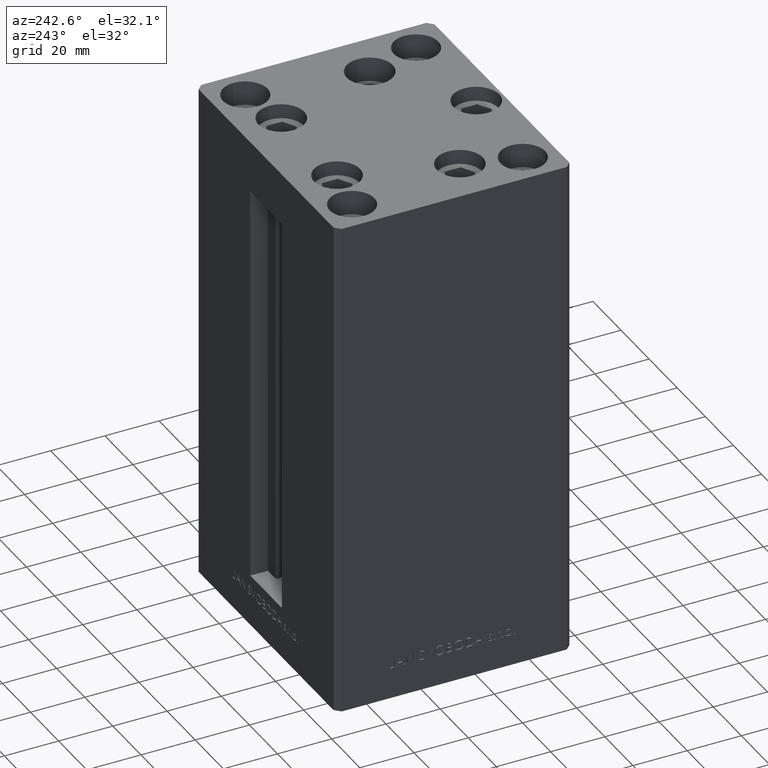
[diagram: clean part render]
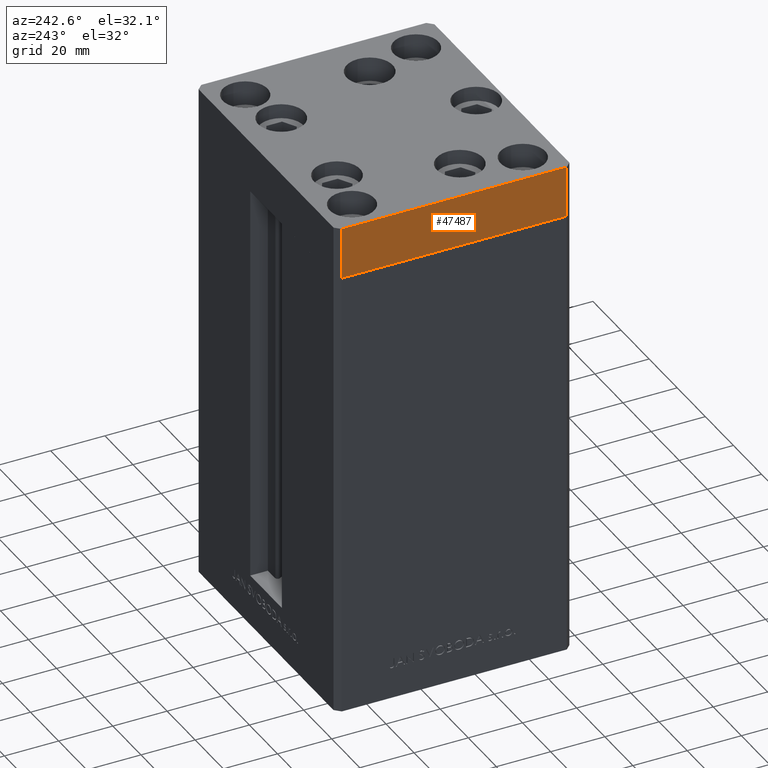
[diagram: same view with one face highlighted and labeled with its STEP entity id]
A machine part, auxiliary view. The second image highlights one B-rep face of the part: STEP entity #47487.
In plain terms, the highlighted planar face has unit normal (-1, -0, 0).
Its self-contained STEP definition (entity closure, byte-faithful):
#3116 = CARTESIAN_POINT ( 'NONE',  ( -50.00000000000000000, -41.50000000000000000, 0.000000000000000000 ) ) ;
#3167 = PLANE ( 'NONE',  #22478 ) ;
#3413 = DIRECTION ( 'NONE',  ( 8.360113137237628665E-17, -1.000000000000000000, 0.000000000000000000 ) ) ;
#3902 = DIRECTION ( 'NONE',  ( -1.000000000000000000, -8.360113137237628665E-17, 0.000000000000000000 ) ) ;
#5604 = EDGE_CURVE ( 'NONE', #10422, #11876, #33852, .T. ) ;
#5952 = EDGE_CURVE ( 'NONE', #15968, #11876, #41155, .T. ) ;
#6759 = CARTESIAN_POINT ( 'NONE',  ( -50.00000000000000711, 41.49999999999995026, 0.000000000000000000 ) ) ;
#8238 = ORIENTED_EDGE ( 'NONE', *, *, #5604, .T. ) ;
#9534 = EDGE_CURVE ( 'NONE', #32077, #15968, #15153, .T. ) ;
#10285 = ORIENTED_EDGE ( 'NONE', *, *, #19541, .T. ) ;
#10322 = DIRECTION ( 'NONE',  ( 8.360113137237628665E-17, -1.000000000000000000, 0.000000000000000000 ) ) ;
#10422 = VERTEX_POINT ( 'NONE', #22968 ) ;
#11419 = DIRECTION ( 'NONE',  ( 0.000000000000000000, 0.000000000000000000, 1.000000000000000000 ) ) ;
#11876 = VERTEX_POINT ( 'NONE', #3116 ) ;
#15104 = FACE_OUTER_BOUND ( 'NONE', #35898, .T. ) ;
#15153 = LINE ( 'NONE', #45476, #35311 ) ;
#15467 = CARTESIAN_POINT ( 'NONE',  ( -50.00000000000000000, -41.50000000000000000, -19.00000000000000000 ) ) ;
#15968 = VERTEX_POINT ( 'NONE', #6759 ) ;
#19541 = EDGE_CURVE ( 'NONE', #32077, #10422, #44782, .T. ) ;
#20896 = ORIENTED_EDGE ( 'NONE', *, *, #9534, .F. ) ;
#22478 = AXIS2_PLACEMENT_3D ( 'NONE', #45431, #3902, #3413 ) ;
#22968 = CARTESIAN_POINT ( 'NONE',  ( -50.00000000000000000, -41.50000000000000000, -19.00000000000000000 ) ) ;
#25625 = DIRECTION ( 'NONE',  ( 8.360113137237628665E-17, -1.000000000000000000, 0.000000000000000000 ) ) ;
#26168 = CARTESIAN_POINT ( 'NONE',  ( -50.00000000000000711, 41.49999999999995026, -19.00000000000000000 ) ) ;
#29940 = CARTESIAN_POINT ( 'NONE',  ( -50.00000000000000711, 41.49999999999995026, 0.000000000000000000 ) ) ;
#32036 = VECTOR ( 'NONE', #49026, 1000.000000000000000 ) ;
#32077 = VERTEX_POINT ( 'NONE', #26168 ) ;
#33099 = CARTESIAN_POINT ( 'NONE',  ( -50.00000000000000711, 41.49999999999995026, -19.00000000000000000 ) ) ;
#33852 = LINE ( 'NONE', #15467, #32036 ) ;
#34724 = VECTOR ( 'NONE', #25625, 1000.000000000000000 ) ;
#35311 = VECTOR ( 'NONE', #11419, 1000.000000000000000 ) ;
#35898 = EDGE_LOOP ( 'NONE', ( #39407, #20896, #10285, #8238 ) ) ;
#39407 = ORIENTED_EDGE ( 'NONE', *, *, #5952, .F. ) ;
#41155 = LINE ( 'NONE', #29940, #47123 ) ;
#44782 = LINE ( 'NONE', #33099, #34724 ) ;
#45431 = CARTESIAN_POINT ( 'NONE',  ( -50.00000000000000711, 41.49999999999995026, -19.00000000000000000 ) ) ;
#45476 = CARTESIAN_POINT ( 'NONE',  ( -50.00000000000000711, 41.49999999999995026, -19.00000000000000000 ) ) ;
#47123 = VECTOR ( 'NONE', #10322, 1000.000000000000000 ) ;
#47487 = ADVANCED_FACE ( 'NONE', ( #15104 ), #3167, .T. ) ;
#49026 = DIRECTION ( 'NONE',  ( 0.000000000000000000, 0.000000000000000000, 1.000000000000000000 ) ) ;